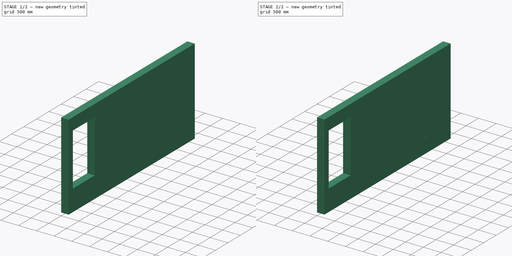
[diagram: build sequence overview — one tinted view per stage of 2, left to right]
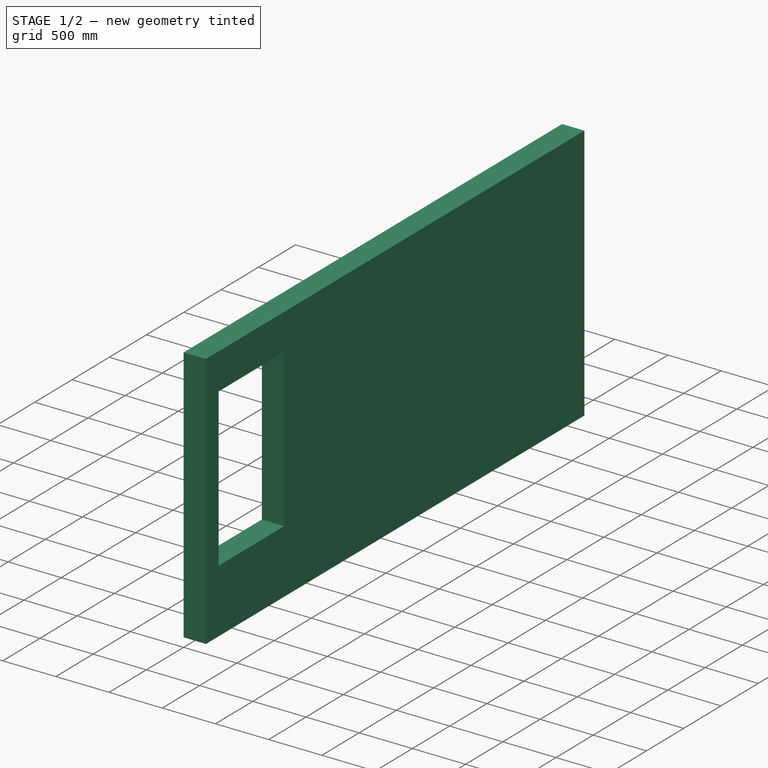
[diagram: stage 1 of 2 — iso view after this stage's code; geometry added in this stage tinted green]
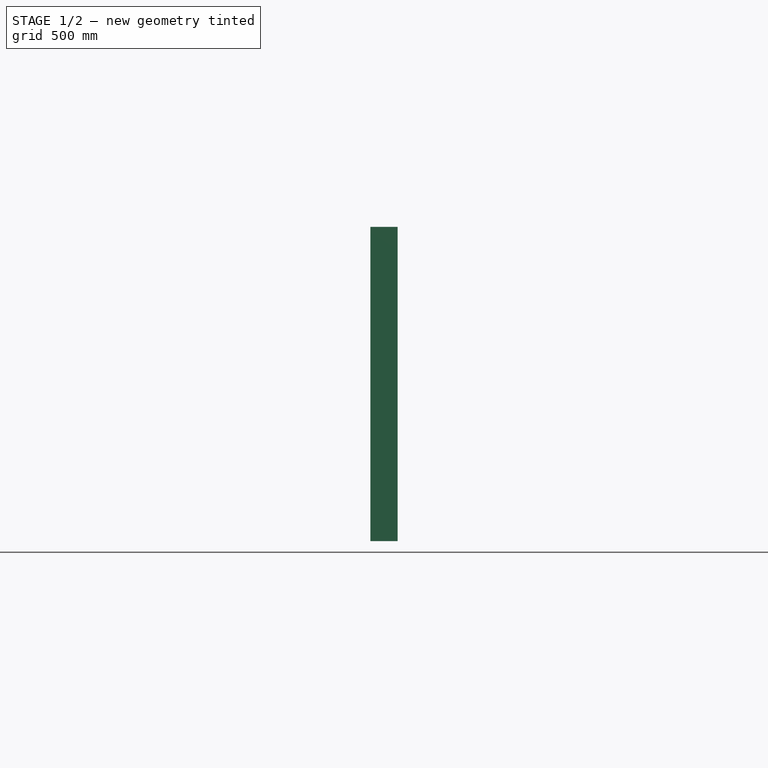
[diagram: stage 1 of 2 — front view after this stage's code; geometry added in this stage tinted green]
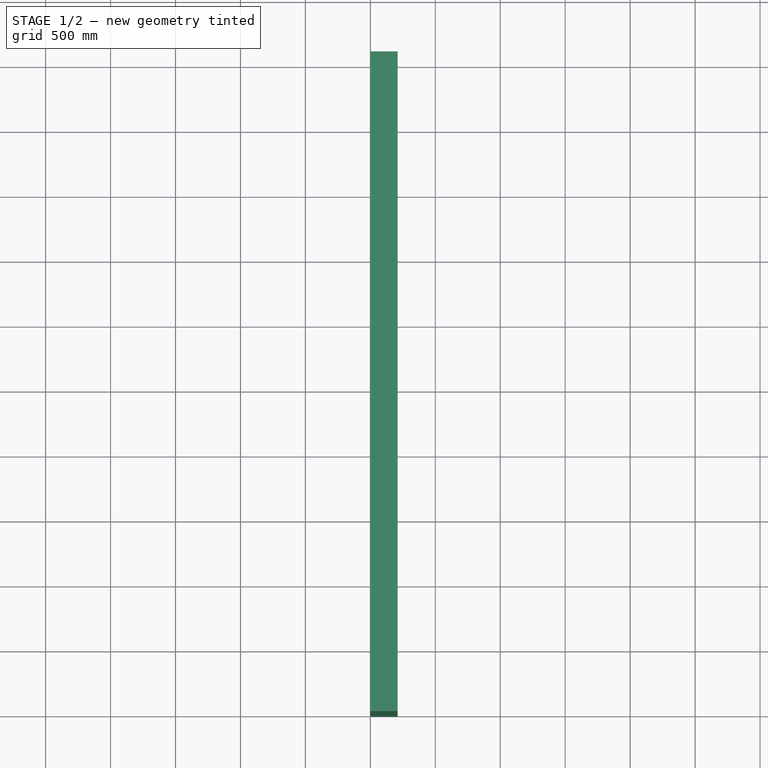
[diagram: stage 1 of 2 — top view after this stage's code; geometry added in this stage tinted green]
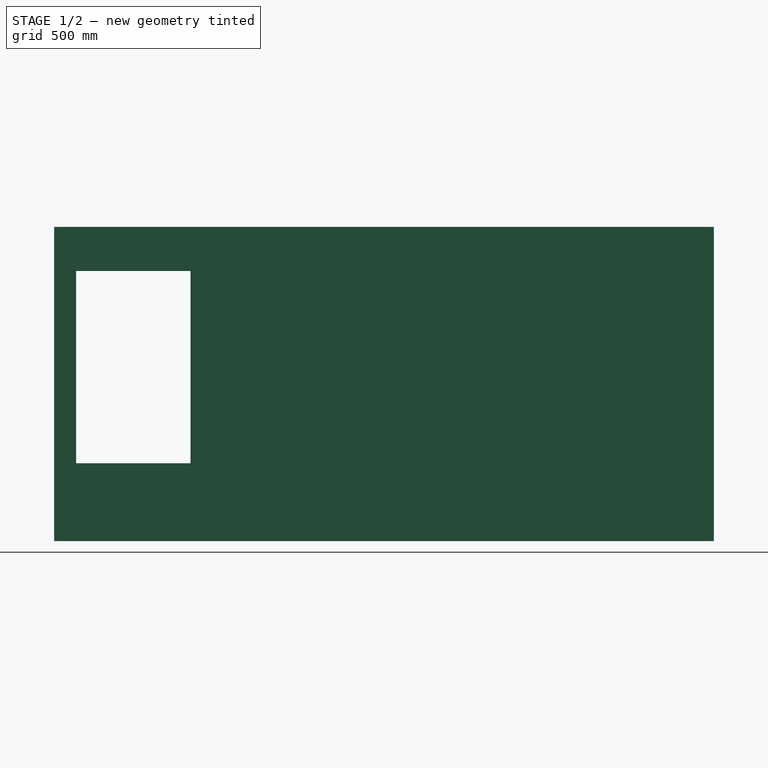
[diagram: stage 1 of 2 — right view after this stage's code; geometry added in this stage tinted green]
FCSTD DOCUMENT  (FreeCAD 0.19R24276 (Git))
Label: rightWall
License: All rights reserved
LicenseURL: http://en.wikipedia.org/wiki/All_rights_reserved
objects: Sketcher::SketchObject×2, PartDesign::Pad×2, PartDesign::Body×1
note: 7 computed .brp shape members not serialized (recipe doc carries the construction recipe); baked Part::Feature solids carry a one-line shape summary decoded from their .brp

FEATURE [Sketcher::SketchObject] Sketch
  FullyConstrained = true
  MapMode = 5
  Placement = pos=(0,0,0) rot=(0.57735,0.57735,0.57735;2.0944rad)
  Support = -> [YZ_Plane]
  sketch-geometry (8):
    g0: LineSegment StartX=0 StartY=0 StartZ=0 EndX=5080 EndY=0 EndZ=0
    g1: LineSegment StartX=5080 StartY=0 StartZ=0 EndX=5080 EndY=2420 EndZ=0
    g2: LineSegment StartX=5080 StartY=2420 StartZ=0 EndX=0 EndY=2420 EndZ=0
    g3: LineSegment StartX=0 StartY=2420 StartZ=0 EndX=0 EndY=0 EndZ=0
    g4: LineSegment StartX=170 StartY=2080 StartZ=0 EndX=1050 EndY=2080 EndZ=0
    g5: LineSegment StartX=1050 StartY=2080 StartZ=0 EndX=1050 EndY=600 EndZ=0
    g6: LineSegment StartX=1050 StartY=600 StartZ=0 EndX=170 EndY=600 EndZ=0
    g7: LineSegment StartX=170 StartY=600 StartZ=0 EndX=170 EndY=2080 EndZ=0
  constraints (23):
    c: Coincident(g0,g1)
    c: Coincident(g1,g2)
    c: Coincident(g2,g3)
    c: Coincident(g3,g0)
    c: Horizontal(g0)
    c: Horizontal(g2)
    c: Vertical(g1)
    c: Vertical(g3)
    c: DistanceX(g0,g0) = 5080
    c: DistanceY(g3,g3) = 2420
    c: Coincident(g0,g-1)
    c: Coincident(g4,g5)
    c: Coincident(g5,g6)
    c: Coincident(g6,g7)
    c: Coincident(g7,g4)
    c: Horizontal(g4)
    c: Horizontal(g6)
    c: Vertical(g5)
    c: Vertical(g7)
    c: DistanceY(g0,g6) = 600
    c: DistanceX(g0,g6) = 170
    c: DistanceY(g7,g7) = 1480
    c: DistanceX(g6,g6) = 880
FEATURE [PartDesign::Pad] Pad
  Direction = (1,1,1)
  Length = 210
  Length2 = 100
  Placement = pos=(0,0,0) rot=(0.57735,0.57735,0.57735;2.0944rad)
  Profile = -> Sketch
  Type = 0
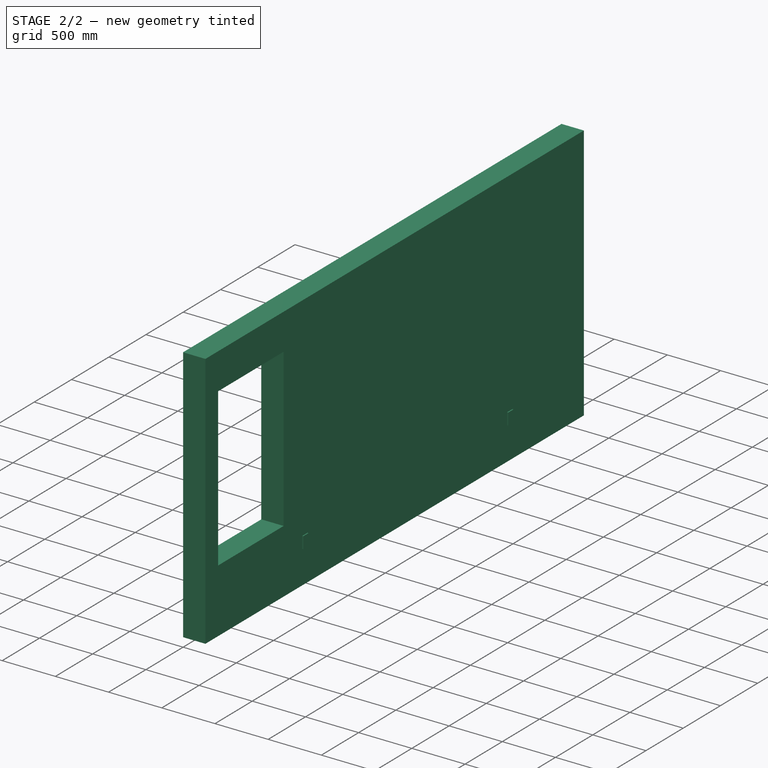
[diagram: stage 2 of 2 — iso view after this stage's code; geometry added in this stage tinted green]
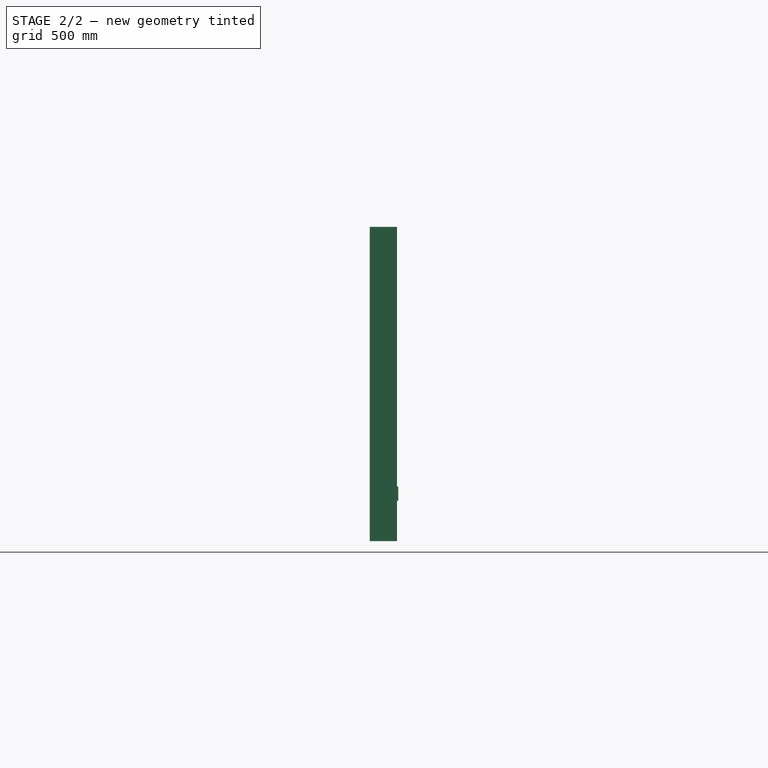
[diagram: stage 2 of 2 — front view after this stage's code; geometry added in this stage tinted green]
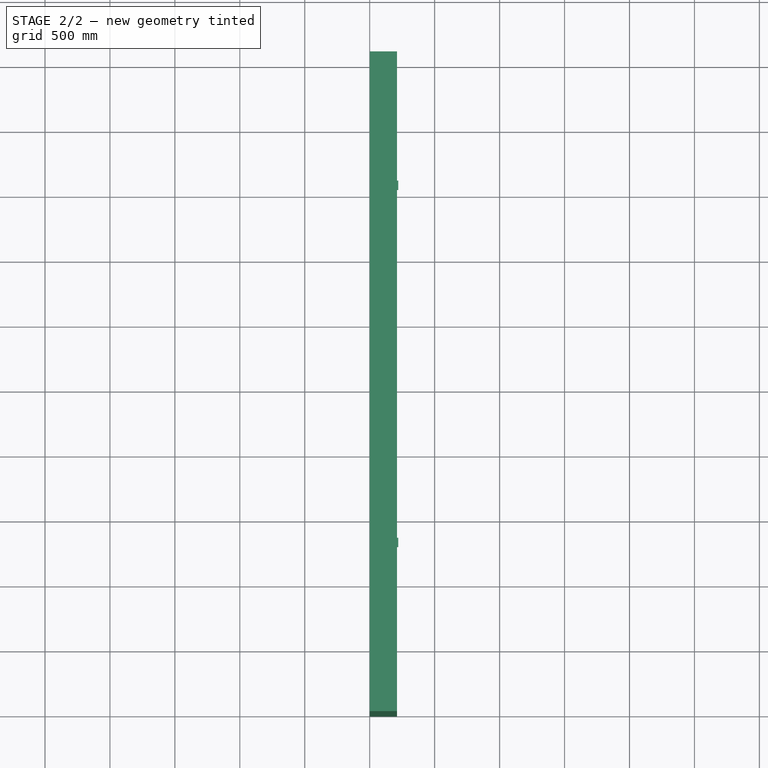
[diagram: stage 2 of 2 — top view after this stage's code; geometry added in this stage tinted green]
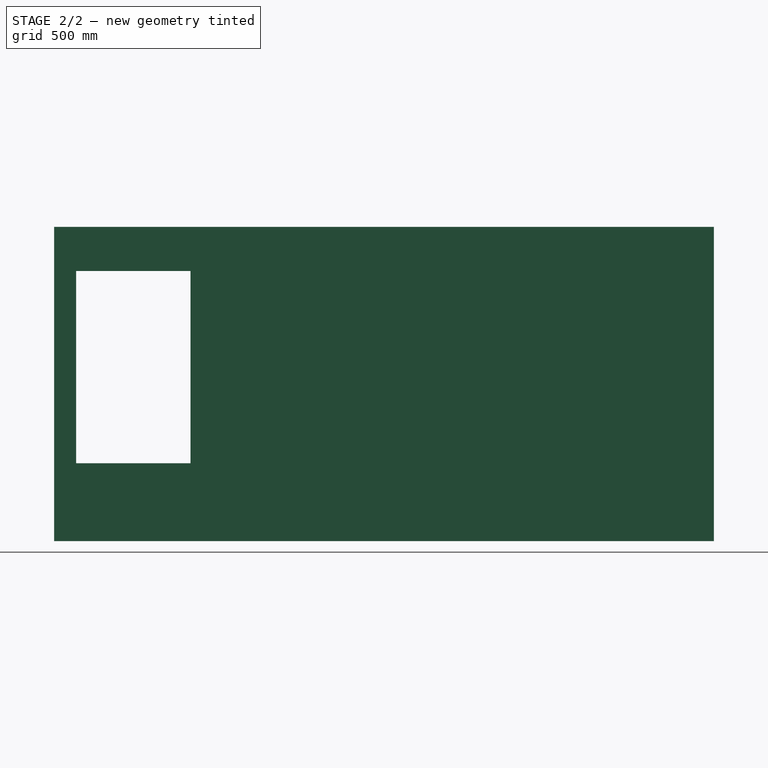
[diagram: stage 2 of 2 — right view after this stage's code; geometry added in this stage tinted green]
FEATURE [Sketcher::SketchObject] Sketch001
  FullyConstrained = true
  MapMode = 5
  Placement = pos=(210,-9.33e-14,6.99e-14) rot=(0.57735,0.57735,0.57735;2.0944rad)
  Support = -> [Pad]
  sketch-geometry (8):
    g0: LineSegment StartX=1300 StartY=420 StartZ=0 EndX=1370 EndY=420 EndZ=0
    g1: LineSegment StartX=1370 StartY=420 StartZ=0 EndX=1370 EndY=310 EndZ=0
    g2: LineSegment StartX=1370 StartY=310 StartZ=0 EndX=1300 EndY=310 EndZ=0
    g3: LineSegment StartX=1300 StartY=310 StartZ=0 EndX=1300 EndY=420 EndZ=0
    g4: LineSegment StartX=4120 StartY=420 StartZ=0 EndX=4050 EndY=420 EndZ=0
    g5: LineSegment StartX=4050 StartY=420 StartZ=0 EndX=4050 EndY=310 EndZ=0
    g6: LineSegment StartX=4050 StartY=310 StartZ=0 EndX=4120 EndY=310 EndZ=0
    g7: LineSegment StartX=4120 StartY=310 StartZ=0 EndX=4120 EndY=420 EndZ=0
  constraints (24):
    c: Coincident(g0,g1)
    c: Coincident(g1,g2)
    c: Coincident(g2,g3)
    c: Coincident(g3,g0)
    c: Horizontal(g0)
    c: Horizontal(g2)
    c: Vertical(g1)
    c: Vertical(g3)
    c: Coincident(g4,g5)
    c: Coincident(g5,g6)
    c: Coincident(g6,g7)
    c: Coincident(g7,g4)
    c: Horizontal(g4)
    c: Horizontal(g6)
    c: Vertical(g5)
    c: Vertical(g7)
    c: DistanceX(g-1,g6) = 4120
    c: DistanceX(g-1,g2) = 1300
    c: DistanceY(g1,g1) = 110
    c: DistanceX(g0,g0) = 70
    c: Equal(g2,g6)
    c: Equal(g1,g5)
    c: DistanceY(g-1,g2) = 310
    c: Horizontal(g2,g5)
FEATURE [PartDesign::Pad] Pad001
  BaseFeature = -> Pad
  Direction = (1,1,1)
  Length = 10
  Length2 = 100
  Placement = pos=(0,0,0) rot=(0.57735,0.57735,0.57735;2.0944rad)
  Profile = -> Sketch001
  Type = 0
FEATURE [PartDesign::Body] Body
  Group = -> [Sketch,Pad,Sketch001,Pad001]
  Origin = -> Origin
  Tip = -> Pad001
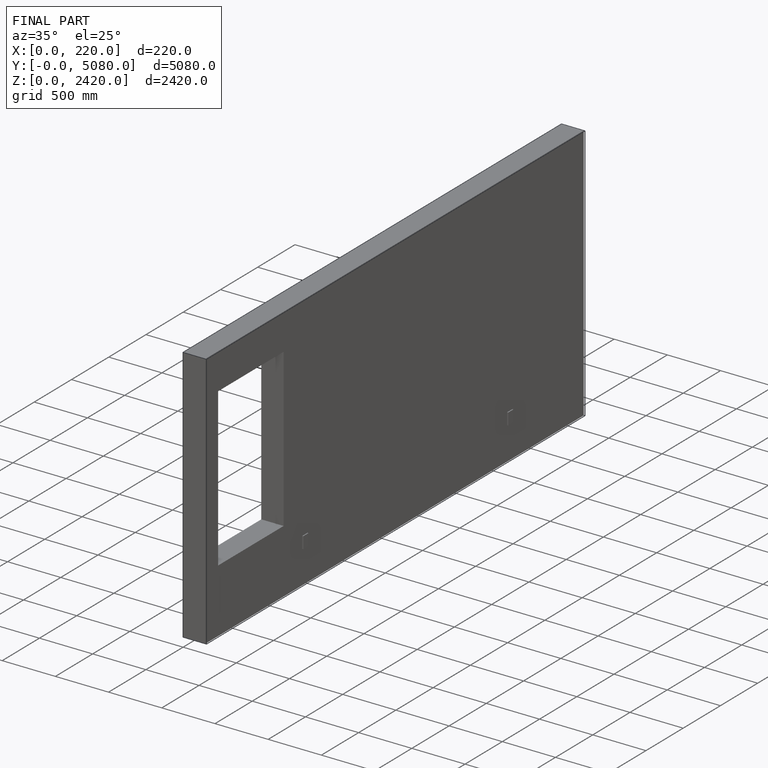
[diagram: finished part — iso view with bounding-box wireframe]
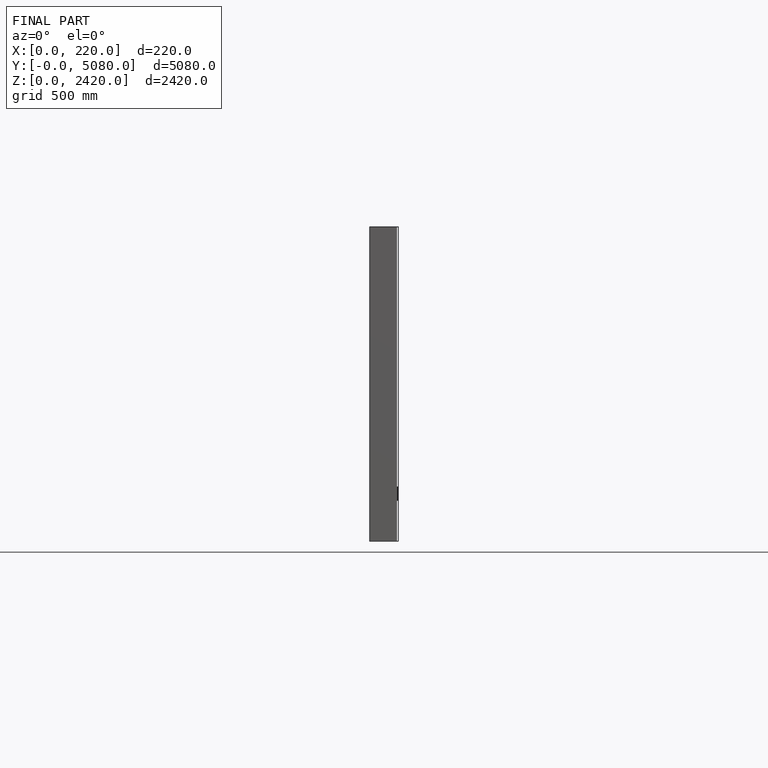
[diagram: finished part — front view with bounding-box wireframe]
